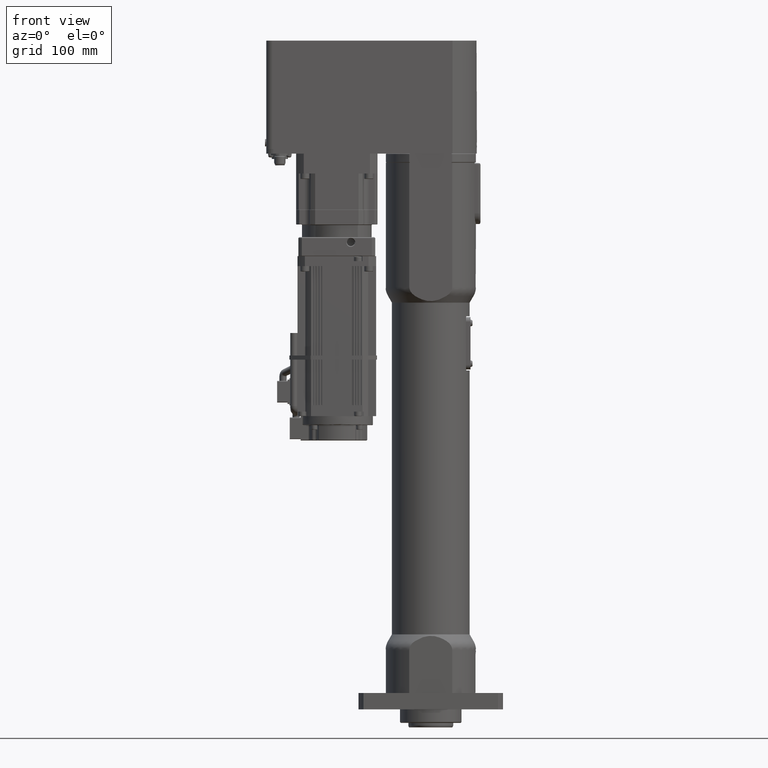
[diagram: clean part render]
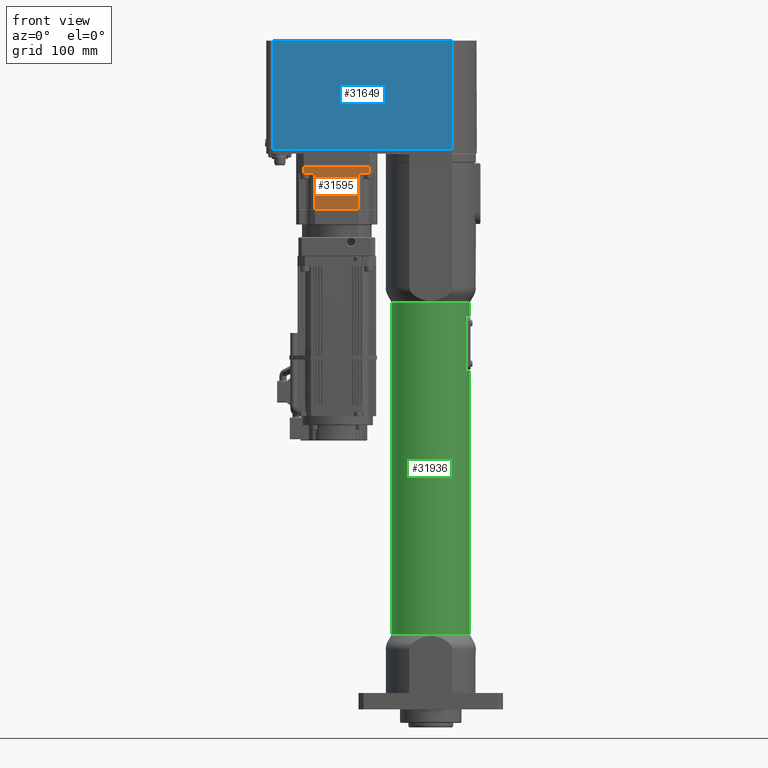
[diagram: same view with three faces highlighted in distinct colors, each labeled with its STEP entity id]
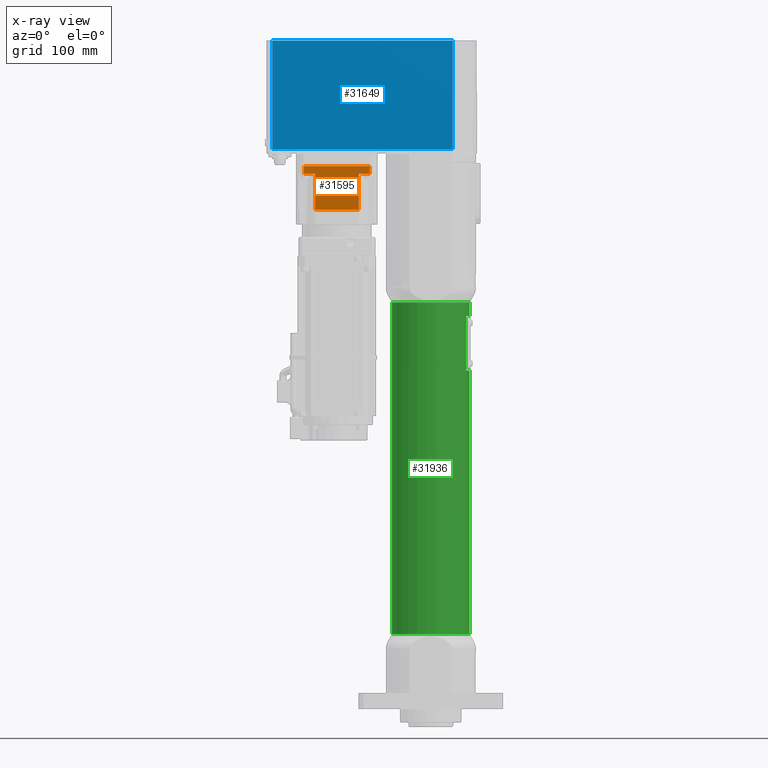
[diagram: x-ray of the same camera — body ghosted, the three highlighted faces saturated]
A machine part, front view with three faces highlighted in distinct colors.
The next image is the same camera in x-ray (body ghosted, the three faces saturated) — at least one of them is partly hidden behind the body in this view.
Their STEP definitions:

[orange] entity #31595 — the highlighted planar face has unit normal (-0, -1, 0).
#568=PLANE('',#33678);
#1737=LINE('',#47952,#4390);
#1740=LINE('',#47965,#4393);
#1761=LINE('',#48029,#4414);
#1763=LINE('',#48034,#4416);
#1783=LINE('',#48082,#4436);
#1784=LINE('',#48086,#4437);
#1785=LINE('',#48087,#4438);
#1786=LINE('',#48088,#4439);
#4390=VECTOR('',#37737,12.59234892706);
#4393=VECTOR('',#37748,12.59234892706);
#4414=VECTOR('',#37809,40.);
#4416=VECTOR('',#37815,40.);
#4436=VECTOR('',#37863,7.99999999999997);
#4437=VECTOR('',#37868,8.00000000000004);
#4438=VECTOR('',#37869,73.1846978541279);
#4439=VECTOR('',#37870,47.9999999999999);
#7649=FACE_OUTER_BOUND('',#9439,.T.);
#9439=EDGE_LOOP('',(#21681,#21682,#21683,#21684,#21685,#21686,#21687,#21688));
#13356=VERTEX_POINT('',#47949);
#13357=VERTEX_POINT('',#47951);
#13362=VERTEX_POINT('',#47963);
#13363=VERTEX_POINT('',#47964);
#13386=VERTEX_POINT('',#48027);
#13387=VERTEX_POINT('',#48032);
#13401=VERTEX_POINT('',#48081);
#13402=VERTEX_POINT('',#48085);
#16526=EDGE_CURVE('',#13356,#13357,#1737,.T.);
#16532=EDGE_CURVE('',#13362,#13363,#1740,.T.);
#16564=EDGE_CURVE('',#13386,#13362,#1761,.T.);
#16567=EDGE_CURVE('',#13387,#13357,#1763,.T.);
#16591=EDGE_CURVE('',#13401,#13363,#1783,.T.);
#16593=EDGE_CURVE('',#13402,#13356,#1784,.T.);
#16594=EDGE_CURVE('',#13401,#13402,#1785,.T.);
#16595=EDGE_CURVE('',#13387,#13386,#1786,.T.);
#21681=ORIENTED_EDGE('',*,*,#16526,.F.);
#21682=ORIENTED_EDGE('',*,*,#16593,.F.);
#21683=ORIENTED_EDGE('',*,*,#16594,.F.);
#21684=ORIENTED_EDGE('',*,*,#16591,.T.);
#21685=ORIENTED_EDGE('',*,*,#16532,.F.);
#21686=ORIENTED_EDGE('',*,*,#16564,.F.);
#21687=ORIENTED_EDGE('',*,*,#16595,.F.);
#21688=ORIENTED_EDGE('',*,*,#16567,.T.);
#31595=ADVANCED_FACE('',(#7649),#568,.T.);
#33678=AXIS2_PLACEMENT_3D('',#48084,#37866,#37867);
#37737=DIRECTION('',(-1.,4.23199082956555E-14,-1.63636978743201E-13));
#37748=DIRECTION('',(-1.,4.16145764907279E-14,-1.63636978743201E-13));
#37809=DIRECTION('',(-1.62536650805123E-13,9.99200722162641E-15,1.));
#37815=DIRECTION('',(-1.62536650805123E-13,9.99200722162641E-15,1.));
#37863=DIRECTION('',(6.52811138479594E-13,-8.88178419700128E-15,-1.));
#37866=DIRECTION('center_axis',(-4.20205999107585E-14,-1.,1.0075780062508E-14));
#37867=DIRECTION('ref_axis',(0.,-1.0075780062508E-14,-1.));
#37868=DIRECTION('',(-3.39728245535296E-13,-7.77156117237605E-15,-1.));
#37869=DIRECTION('',(1.,-4.1990982025884E-14,1.67963928103536E-13));
#37870=DIRECTION('',(-1.,4.2188474935756E-14,-1.6135241291219E-13));
#47949=CARTESIAN_POINT('',(-67.404584113986,-45.0000000000212,593.00000000001));
#47951=CARTESIAN_POINT('',(-79.996933041046,-45.0000000000206,593.000000000008));
#47952=CARTESIAN_POINT('',(-67.404584113986,-45.0000000000212,593.00000000001));
#47963=CARTESIAN_POINT('',(-127.996933041046,-45.0000000000186,593.));
#47964=CARTESIAN_POINT('',(-140.589281968106,-45.0000000000181,593.));
#47965=CARTESIAN_POINT('',(-127.996933041046,-45.0000000000186,593.));
#48027=CARTESIAN_POINT('',(-127.996933041039,-45.000000000019,553.));
#48029=CARTESIAN_POINT('',(-127.996933041039,-45.000000000019,553.));
#48032=CARTESIAN_POINT('',(-79.9969330410395,-45.000000000021,553.000000000008));
#48034=CARTESIAN_POINT('',(-79.9969330410395,-45.000000000021,553.000000000008));
#48081=CARTESIAN_POINT('',(-140.589281968111,-45.000000000018,601.));
#48082=CARTESIAN_POINT('',(-140.589281968111,-45.000000000018,601.));
#48084=CARTESIAN_POINT('Origin',(-67.4045841139873,-45.0000000000211,601.00000000001));
#48085=CARTESIAN_POINT('',(-67.4045841139833,-45.0000000000211,601.00000000001));
#48086=CARTESIAN_POINT('',(-67.4045841139833,-45.0000000000211,601.00000000001));
#48087=CARTESIAN_POINT('',(-140.589281968111,-45.000000000018,601.));
#48088=CARTESIAN_POINT('',(-79.9969330410395,-45.000000000021,553.000000000008));

[blue] entity #31649 — the highlighted planar face has unit normal (-0, -1, 0).
#597=PLANE('',#33796);
#1860=LINE('',#48405,#4513);
#1875=LINE('',#48450,#4528);
#1883=LINE('',#48517,#4536);
#1884=LINE('',#48519,#4537);
#1885=LINE('',#48520,#4538);
#4513=VECTOR('',#38124,198.000000000096);
#4528=VECTOR('',#38171,1.39999999988749);
#4536=VECTOR('',#38201,199.399999999983);
#4537=VECTOR('',#38204,120.);
#4538=VECTOR('',#38205,120.);
#7703=FACE_OUTER_BOUND('',#9499,.T.);
#9499=EDGE_LOOP('',(#21971,#21972,#21973,#21974,#21975));
#13468=VERTEX_POINT('',#48278);
#13481=VERTEX_POINT('',#48400);
#13495=VERTEX_POINT('',#48449);
#13501=VERTEX_POINT('',#48506);
#13506=VERTEX_POINT('',#48515);
#16723=EDGE_CURVE('',#13468,#13481,#1860,.T.);
#16746=EDGE_CURVE('',#13495,#13468,#1875,.T.);
#16762=EDGE_CURVE('',#13506,#13501,#1883,.T.);
#16763=EDGE_CURVE('',#13481,#13501,#1884,.T.);
#16764=EDGE_CURVE('',#13495,#13506,#1885,.T.);
#21971=ORIENTED_EDGE('',*,*,#16746,.T.);
#21972=ORIENTED_EDGE('',*,*,#16723,.T.);
#21973=ORIENTED_EDGE('',*,*,#16763,.T.);
#21974=ORIENTED_EDGE('',*,*,#16762,.F.);
#21975=ORIENTED_EDGE('',*,*,#16764,.F.);
#31649=ADVANCED_FACE('',(#7703),#597,.T.);
#33796=AXIS2_PLACEMENT_3D('',#48518,#38202,#38203);
#38124=DIRECTION('',(1.,-4.71452282375949E-14,1.4928574650306E-13));
#38171=DIRECTION('',(1.,-5.46229728159474E-12,-2.26866144935921E-11));
#38201=DIRECTION('',(1.,-8.51208104336551E-14,-1.06902116714167E-14));
#38202=DIRECTION('center_axis',(-8.51713161579732E-14,-1.,7.79443320540508E-15));
#38203=DIRECTION('ref_axis',(0.,-7.79443320540508E-15,-1.));
#38204=DIRECTION('',(1.09542005096349E-14,7.69754630406775E-15,1.));
#38205=DIRECTION('',(1.12502599828683E-14,7.7715611723761E-15,1.));
#48278=CARTESIAN_POINT('',(-173.996933041057,-45.0000000000165,619.999999999992));
#48400=CARTESIAN_POINT('',(24.0030669590389,-45.0000000000258,620.000000000022));
#48405=CARTESIAN_POINT('',(-173.996933041057,-45.0000000000165,619.999999999992));
#48449=CARTESIAN_POINT('',(-175.396933040944,-45.0000000000089,620.000000000024));
#48450=CARTESIAN_POINT('',(-175.396933040944,-45.0000000000089,620.000000000024));
#48506=CARTESIAN_POINT('',(24.0030669590402,-45.0000000000249,740.000000000022));
#48515=CARTESIAN_POINT('',(-175.396933040943,-45.0000000000079,740.000000000024));
#48517=CARTESIAN_POINT('',(-175.396933040943,-45.0000000000079,740.000000000024));
#48518=CARTESIAN_POINT('Origin',(-175.396933040944,-45.0000000000089,620.000000000024));
#48519=CARTESIAN_POINT('',(24.0030669590389,-45.0000000000258,620.000000000022));
#48520=CARTESIAN_POINT('',(-175.396933040944,-45.0000000000089,620.000000000024));

[green] entity #31936 — the highlighted cylindrical surface (bore or boss wall) has radius 43 mm, axis along (-0, 0, 1).
#1535=LINE('',#46587,#4188);
#2210=LINE('',#50487,#4863);
#2211=LINE('',#50488,#4864);
#2212=LINE('',#50489,#4865);
#4188=VECTOR('',#36825,60.);
#4863=VECTOR('',#39672,43.);
#4864=VECTOR('',#39673,43.);
#4865=VECTOR('',#39674,60.);
#7121=CYLINDRICAL_SURFACE('',#34367,43.);
#7990=FACE_OUTER_BOUND('',#9825,.T.);
#9825=EDGE_LOOP('',(#23373,#23374,#23375,#23376,#23377,#23378,#23379,#23380,
#23381,#23382,#23383,#23384));
#11886=CIRCLE('',#34317,43.);
#11894=CIRCLE('',#34330,43.);
#11901=CIRCLE('',#34348,43.);
#11902=CIRCLE('',#34349,43.);
#11903=CIRCLE('',#34351,43.);
#11904=CIRCLE('',#34352,43.);
#13020=VERTEX_POINT('',#46584);
#13021=VERTEX_POINT('',#46586);
#13875=VERTEX_POINT('',#50159);
#13888=VERTEX_POINT('',#50274);
#13906=VERTEX_POINT('',#50420);
#13907=VERTEX_POINT('',#50422);
#13908=VERTEX_POINT('',#50426);
#13909=VERTEX_POINT('',#50428);
#16055=EDGE_CURVE('',#13021,#13020,#1535,.T.);
#17378=EDGE_CURVE('',#13875,#13875,#11886,.T.);
#17400=EDGE_CURVE('',#13888,#13888,#11894,.T.);
#17430=EDGE_CURVE('',#13907,#13906,#11901,.T.);
#17431=EDGE_CURVE('',#13020,#13907,#11902,.T.);
#17432=EDGE_CURVE('',#13908,#13021,#11903,.T.);
#17433=EDGE_CURVE('',#13909,#13908,#11904,.T.);
#17454=EDGE_CURVE('',#13875,#13908,#2210,.T.);
#17455=EDGE_CURVE('',#13907,#13888,#2211,.T.);
#17456=EDGE_CURVE('',#13906,#13909,#2212,.T.);
#23373=ORIENTED_EDGE('',*,*,#17378,.F.);
#23374=ORIENTED_EDGE('',*,*,#17454,.T.);
#23375=ORIENTED_EDGE('',*,*,#17432,.T.);
#23376=ORIENTED_EDGE('',*,*,#16055,.T.);
#23377=ORIENTED_EDGE('',*,*,#17431,.T.);
#23378=ORIENTED_EDGE('',*,*,#17455,.T.);
#23379=ORIENTED_EDGE('',*,*,#17400,.F.);
#23380=ORIENTED_EDGE('',*,*,#17455,.F.);
#23381=ORIENTED_EDGE('',*,*,#17430,.T.);
#23382=ORIENTED_EDGE('',*,*,#17456,.T.);
#23383=ORIENTED_EDGE('',*,*,#17433,.T.);
#23384=ORIENTED_EDGE('',*,*,#17454,.F.);
#31936=ADVANCED_FACE('',(#7990),#7121,.T.);
#34317=AXIS2_PLACEMENT_3D('',#50161,#39533,#39534);
#34330=AXIS2_PLACEMENT_3D('',#50276,#39565,#39566);
#34348=AXIS2_PLACEMENT_3D('',#50423,#39617,#39618);
#34349=AXIS2_PLACEMENT_3D('',#50424,#39619,#39620);
#34351=AXIS2_PLACEMENT_3D('',#50427,#39623,#39624);
#34352=AXIS2_PLACEMENT_3D('',#50429,#39625,#39626);
#34367=AXIS2_PLACEMENT_3D('',#50486,#39670,#39671);
#36825=DIRECTION('',(1.66607468562082E-13,-7.80856860653027E-15,-1.));
#39533=DIRECTION('center_axis',(-1.66741034889409E-13,7.79443320540401E-15,
1.));
#39534=DIRECTION('ref_axis',(-1.,1.29112725371859E-13,-1.6674103488941E-13));
#39565=DIRECTION('center_axis',(1.66741034889409E-13,-7.79443320540401E-15,
-1.));
#39566=DIRECTION('ref_axis',(-1.,1.29112725371859E-13,-1.6674103488941E-13));
#39617=DIRECTION('center_axis',(1.66741034889409E-13,-7.79443320540401E-15,
-1.));
#39618=DIRECTION('ref_axis',(-1.,1.29112725371859E-13,-1.6674103488941E-13));
#39619=DIRECTION('center_axis',(1.66741034889409E-13,-7.79443320540401E-15,
-1.));
#39620=DIRECTION('ref_axis',(-1.,1.29112725371859E-13,-1.6674103488941E-13));
#39623=DIRECTION('center_axis',(-1.66741034889409E-13,7.79443320540401E-15,
1.));
#39624=DIRECTION('ref_axis',(-1.,1.29112725371859E-13,-1.6674103488941E-13));
#39625=DIRECTION('center_axis',(-1.66741034889409E-13,7.79443320540401E-15,
1.));
#39626=DIRECTION('ref_axis',(-1.,1.29112725371859E-13,-1.6674103488941E-13));
#39670=DIRECTION('center_axis',(-1.66741034889409E-13,7.79443320540401E-15,
1.));
#39671=DIRECTION('ref_axis',(-1.,1.29112725371859E-13,-1.6674103488941E-13));
#39672=DIRECTION('',(1.66741034889409E-13,-7.79443320540401E-15,-1.));
#39673=DIRECTION('',(1.66741034889409E-13,-7.79443320540401E-15,-1.));
#39674=DIRECTION('',(-1.6668148343039E-13,7.73455373822192E-15,1.));
#46584=CARTESIAN_POINT('',(39.0000000000603,18.1107702762511,375.000000000062));
#46586=CARTESIAN_POINT('',(39.0000000000503,18.1107702762516,435.000000000062));
#46587=CARTESIAN_POINT('',(39.000000000067,18.1107702762508,335.000000000062));
#50159=CARTESIAN_POINT('',(43.0000000000454,-2.36937828710775E-11,450.000000000063));
#50161=CARTESIAN_POINT('Origin',(4.54330550838906E-11,-1.81472016613239E-11,
450.000000000056));
#50274=CARTESIAN_POINT('',(43.0000000001066,-2.65543398574613E-11,83.0000000000625));
#50276=CARTESIAN_POINT('Origin',(1.06624020337134E-10,-2.10077586477076E-11,
83.0000000000553));
#50420=CARTESIAN_POINT('',(39.0000000000556,-18.1107702762986,375.000000000062));
#50422=CARTESIAN_POINT('',(43.0000000000579,-2.42783653614833E-11,375.000000000063));
#50423=CARTESIAN_POINT('Origin',(5.79386327005963E-11,-1.87317841517292E-11,
375.000000000056));
#50424=CARTESIAN_POINT('Origin',(5.79386327005963E-11,-1.87317841517292E-11,
375.000000000056));
#50426=CARTESIAN_POINT('',(43.0000000000479,-2.38106993691591E-11,435.000000000063));
#50427=CARTESIAN_POINT('Origin',(4.79341706072317E-11,-1.82641181594049E-11,
435.000000000056));
#50428=CARTESIAN_POINT('',(39.0000000000456,-18.1107702762981,435.000000000062));
#50429=CARTESIAN_POINT('Origin',(4.79341706072317E-11,-1.82641181594049E-11,
435.000000000056));
#50486=CARTESIAN_POINT('Origin',(1.06624020337134E-10,-2.10077586477076E-11,
83.0000000000553));
#50487=CARTESIAN_POINT('',(43.0000000001066,-2.65543398574613E-11,83.0000000000625));
#50488=CARTESIAN_POINT('',(43.0000000001066,-2.65543398574613E-11,83.0000000000625));
#50489=CARTESIAN_POINT('',(39.0000000000723,-18.1107702762994,275.000000000062));